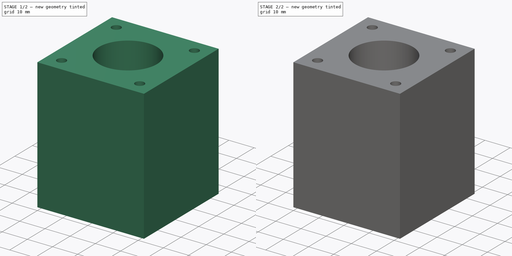
[diagram: build sequence overview — one tinted view per stage of 2, left to right]
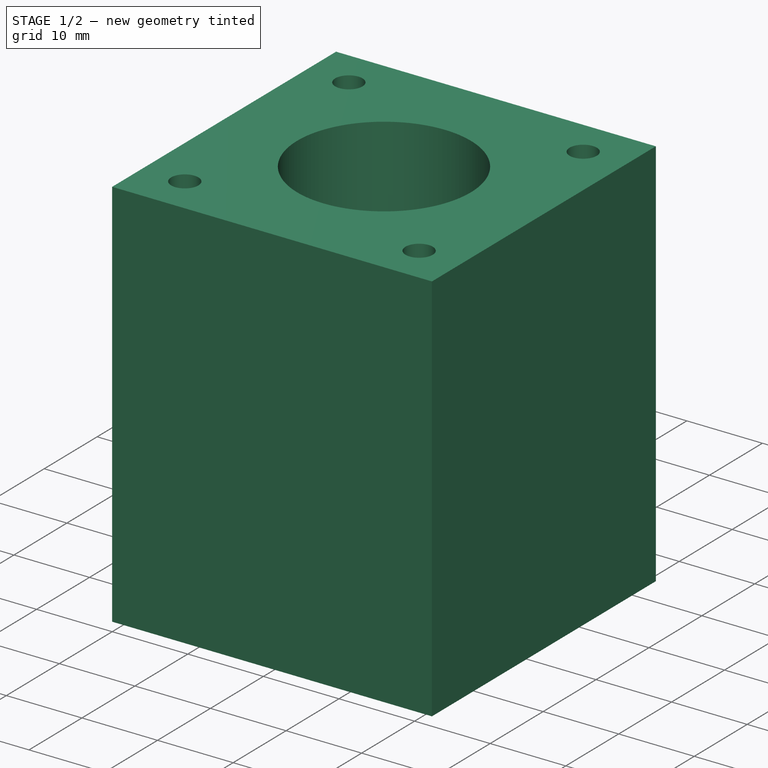
[diagram: stage 1 of 2 — iso view after this stage's code; geometry added in this stage tinted green]
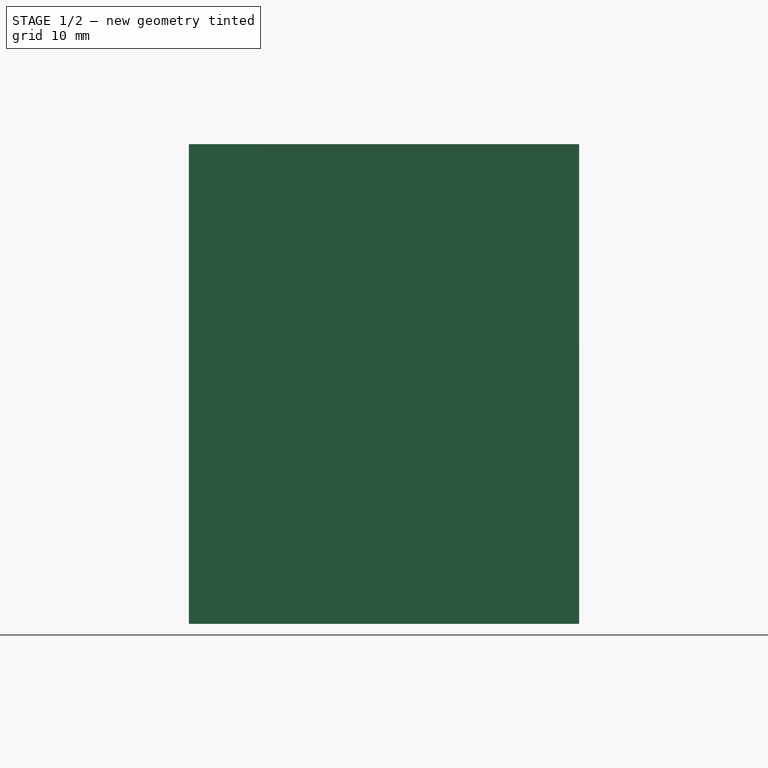
[diagram: stage 1 of 2 — front view after this stage's code; geometry added in this stage tinted green]
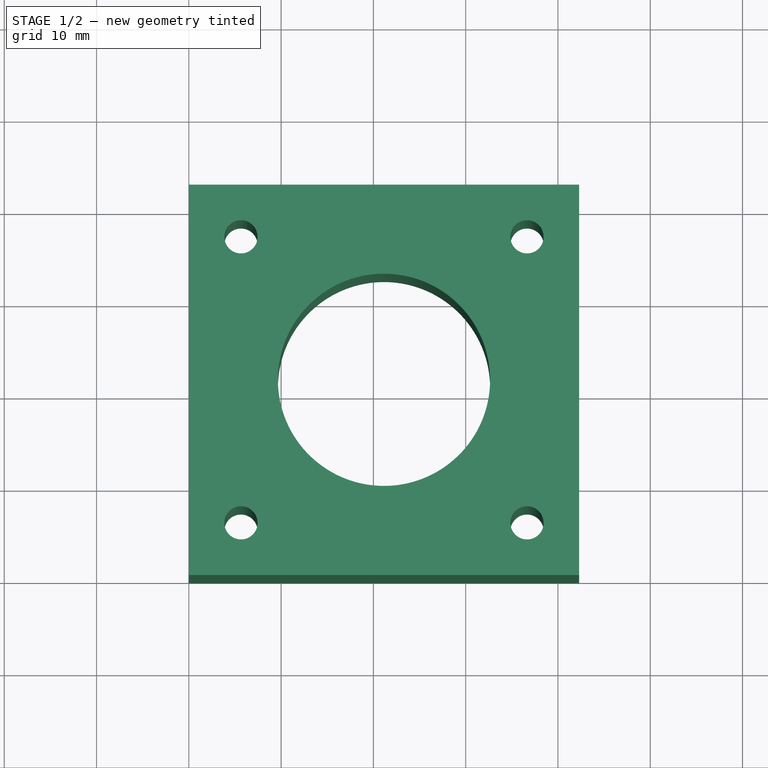
[diagram: stage 1 of 2 — top view after this stage's code; geometry added in this stage tinted green]
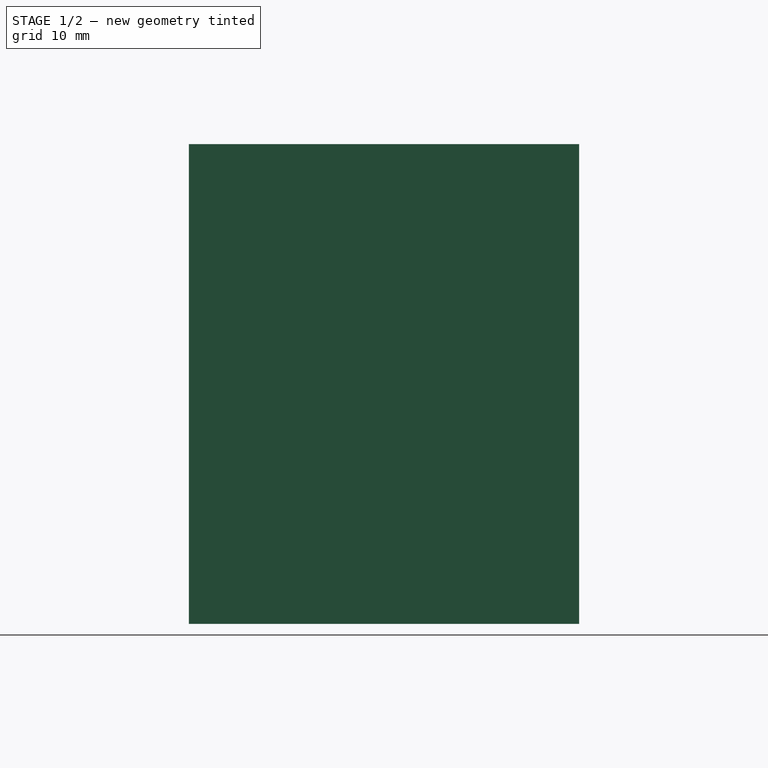
[diagram: stage 1 of 2 — right view after this stage's code; geometry added in this stage tinted green]
FCSTD DOCUMENT  (FreeCAD 0.18R16110 (Git))
Label: cube
License: All rights reserved
LicenseURL: http://en.wikipedia.org/wiki/All_rights_reserved
objects: Sketcher::SketchObject×2, PartDesign::Pad×1, PartDesign::Pocket×1, PartDesign::Body×1
note: 7 computed .brp shape members not serialized (recipe doc carries the construction recipe); baked Part::Feature solids carry a one-line shape summary decoded from their .brp

FEATURE [Sketcher::SketchObject] Sketch
  MapMode = 5
  Support = -> [XY_Plane]
  sketch-geometry (9):
    g0: LineSegment StartX=0 StartY=42.3 StartZ=0 EndX=42.3 EndY=42.3 EndZ=0
    g1: LineSegment StartX=42.3 StartY=42.3 StartZ=0 EndX=42.3 EndY=0 EndZ=0
    g2: LineSegment StartX=42.3 StartY=0 StartZ=0 EndX=0 EndY=0 EndZ=0
    g3: LineSegment StartX=0 StartY=0 StartZ=0 EndX=0 EndY=42.3 EndZ=0
    g4: Circle CenterX=5.65 CenterY=36.65 CenterZ=0 NormalX=0 NormalY=0 NormalZ=1 AngleXU=0 Radius=1.8
    g5: Circle CenterX=36.65 CenterY=36.65 CenterZ=0 NormalX=0 NormalY=0 NormalZ=1 AngleXU=0 Radius=1.8
    g6: Circle CenterX=36.65 CenterY=5.65 CenterZ=0 NormalX=0 NormalY=0 NormalZ=1 AngleXU=0 Radius=1.8
    g7: Circle CenterX=5.65 CenterY=5.65 CenterZ=0 NormalX=0 NormalY=0 NormalZ=1 AngleXU=0 Radius=1.8
    g8: Circle CenterX=21.15 CenterY=21.15 CenterZ=0 NormalX=0 NormalY=0 NormalZ=1 AngleXU=0 Radius=11.5
  constraints (26):
    c: Coincident(g0,g1)
    c: Coincident(g1,g2)
    c: Coincident(g2,g3)
    c: Coincident(g3,g0)
    c: Horizontal(g0)
    c: Horizontal(g2)
    c: Vertical(g1)
    c: Vertical(g3)
    c: DistanceY(g3,g3) = 42.3
    c: DistanceX(g0,g0) = 42.3
    c: Coincident(g2,g-1)
    c: DistanceX(g2,g7) = 5.65
    c: DistanceY(g2,g7) = 5.65
    c: Radius(g7) = 1.8
    c: DistanceY(g7,g4) = 31
    c: DistanceX(g4,g7) = 0
    c: DistanceY(g5,g4) = 0
    c: DistanceX(g4,g5) = 31
    c: DistanceX(g6,g5) = 0
    c: DistanceY(g6,g5) = 31
    c: Radius(g4) = 1.8
    c: Radius(g5) = 1.8
    c: Radius(g6) = 1.8
    c: DistanceX(g2,g8) = 21.15
    c: DistanceY(g2,g8) = 21.15
    c: Radius(g8) = 11.5
FEATURE [PartDesign::Pad] Pad
  Length = 52
  Length2 = 100
  Profile = -> Sketch
  Type = 0
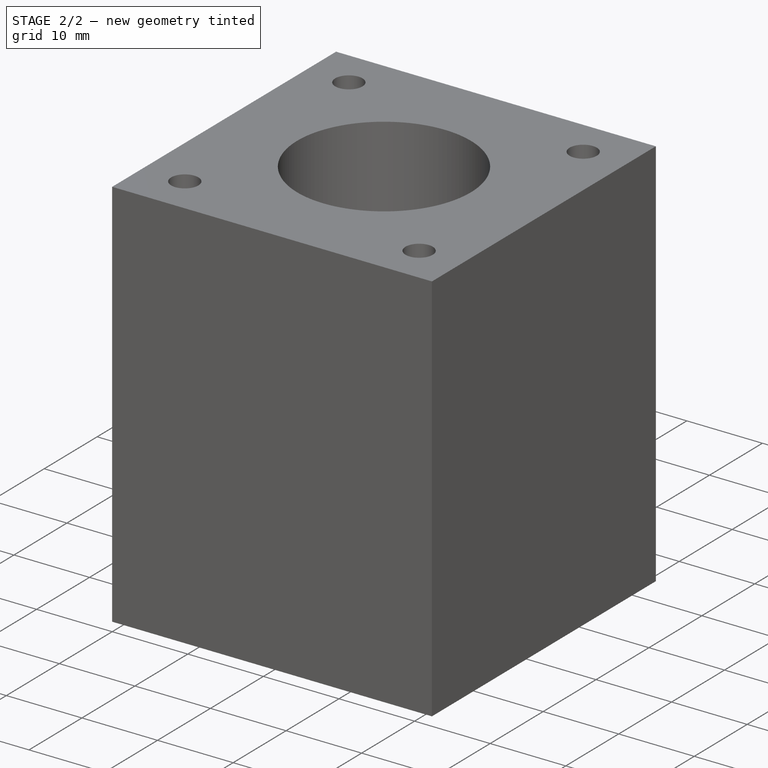
[diagram: stage 2 of 2 — iso view after this stage's code; geometry added in this stage tinted green]
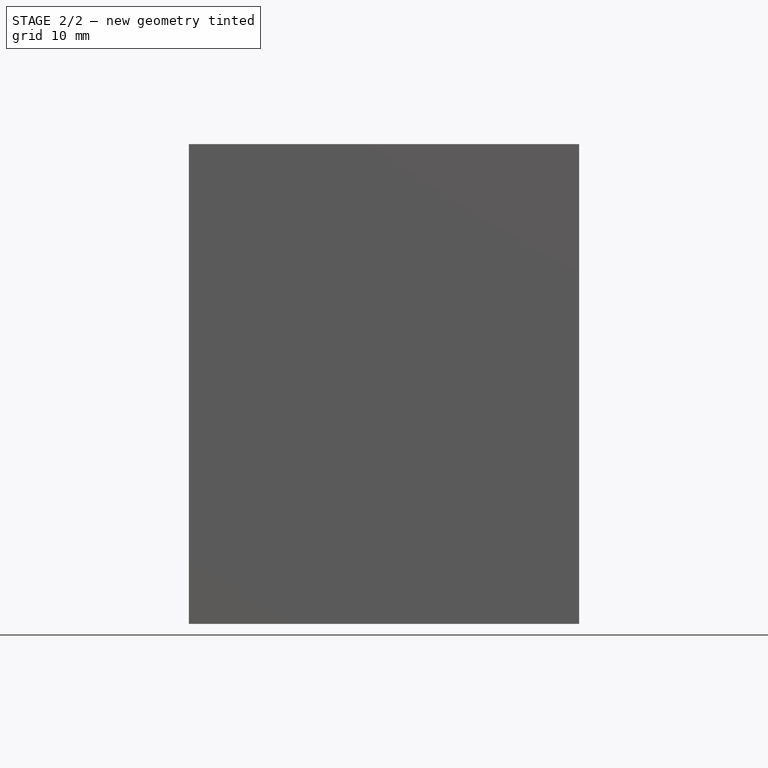
[diagram: stage 2 of 2 — front view after this stage's code; geometry added in this stage tinted green]
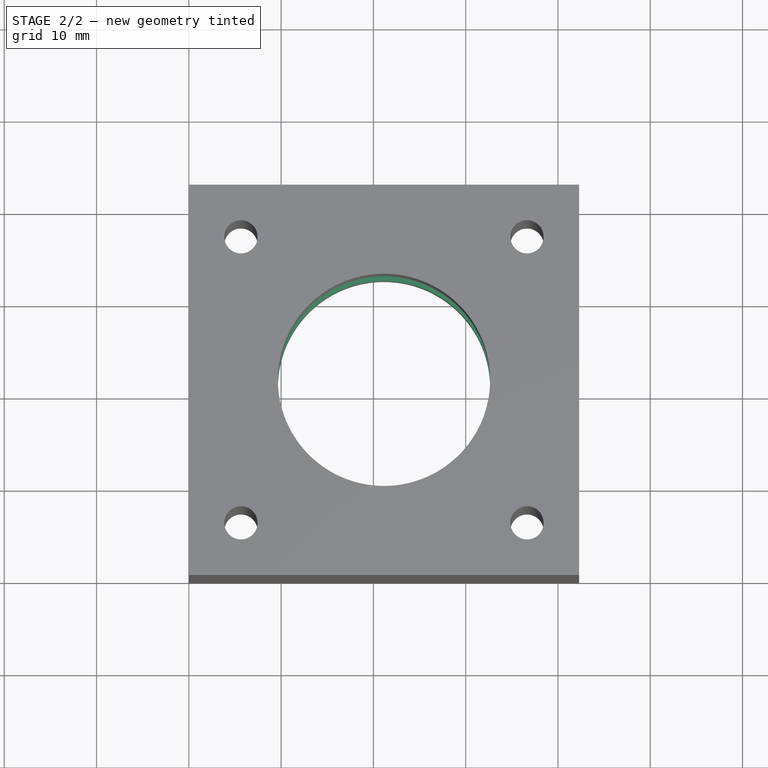
[diagram: stage 2 of 2 — top view after this stage's code; geometry added in this stage tinted green]
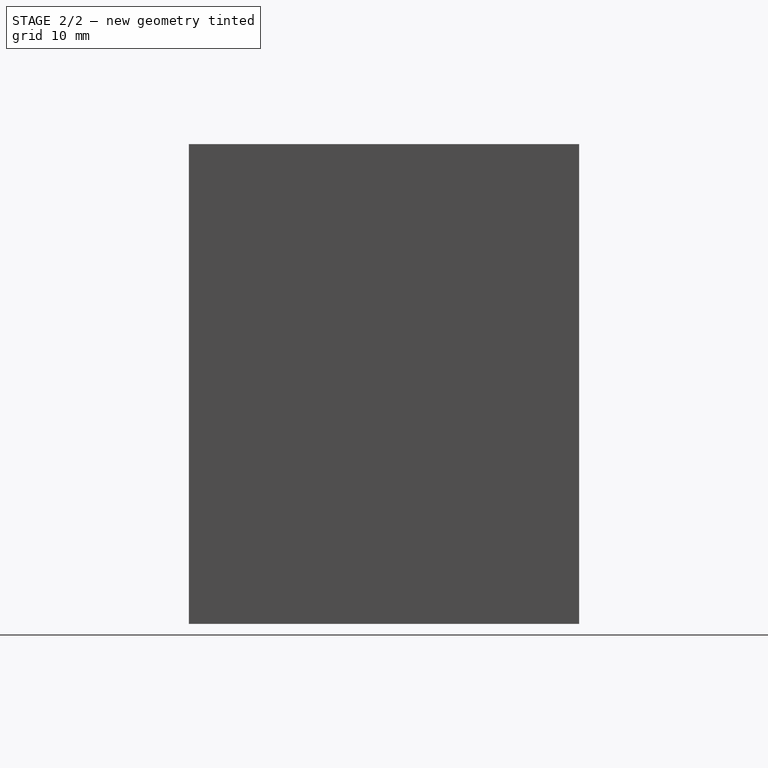
[diagram: stage 2 of 2 — right view after this stage's code; geometry added in this stage tinted green]
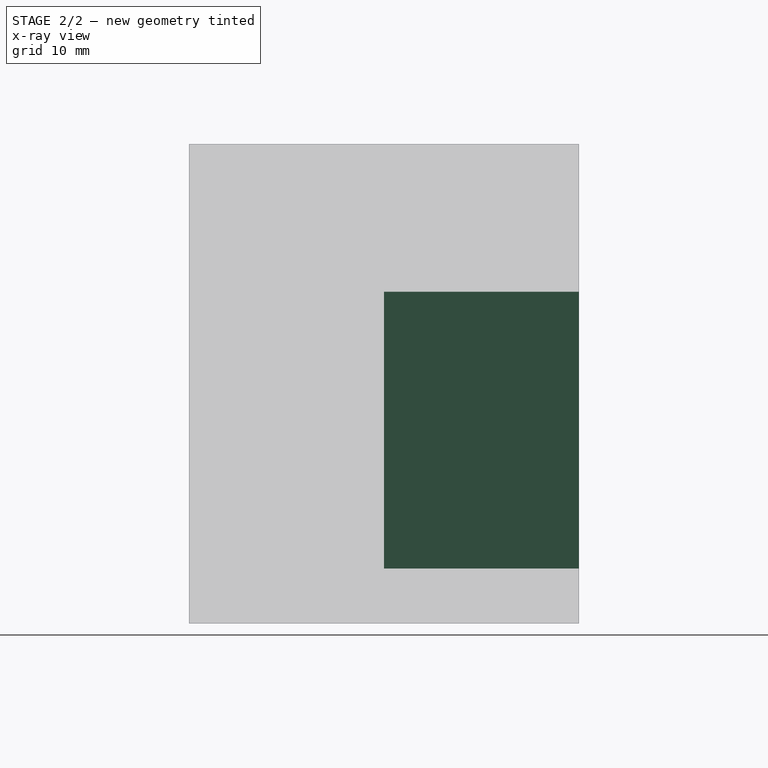
[diagram: stage 2 of 2 — x-ray composite at the right view; earlier geometry ghosted, this stage's added geometry solid]
FEATURE [Sketcher::SketchObject] Sketch001
  MapMode = 5
  Placement = pos=(0,42.3,0) rot=(0,0.707107,0.707107;3.14159rad)
  Support = -> [Pad]
  sketch-geometry (4):
    g0: LineSegment StartX=-32.65 StartY=36 StartZ=0 EndX=-9.65 EndY=36 EndZ=0
    g1: LineSegment StartX=-9.65 StartY=36 StartZ=0 EndX=-9.65 EndY=6 EndZ=0
    g2: LineSegment StartX=-9.65 StartY=6 StartZ=0 EndX=-32.65 EndY=6 EndZ=0
    g3: LineSegment StartX=-32.65 StartY=6 StartZ=0 EndX=-32.65 EndY=36 EndZ=0
  constraints (12):
    c: Coincident(g0,g1)
    c: Coincident(g1,g2)
    c: Coincident(g2,g3)
    c: Coincident(g3,g0)
    c: Horizontal(g0)
    c: Horizontal(g2)
    c: Vertical(g1)
    c: Vertical(g3)
    c: DistanceY(g-1,g1) = 6
    c: DistanceY(g3,g3) = 30
    c: DistanceX(g0,g0) = 23
    c: DistanceX(g1,g-1) = 9.65
FEATURE [PartDesign::Pocket] Pocket
  BaseFeature = -> Pad
  Length = 21.15
  Length2 = 100
  Profile = -> Sketch001
  Type = 0
FEATURE [PartDesign::Body] Body
  Group = -> [Sketch,Pad,Sketch001,Pocket]
  Origin = -> Origin
  Tip = -> Pocket
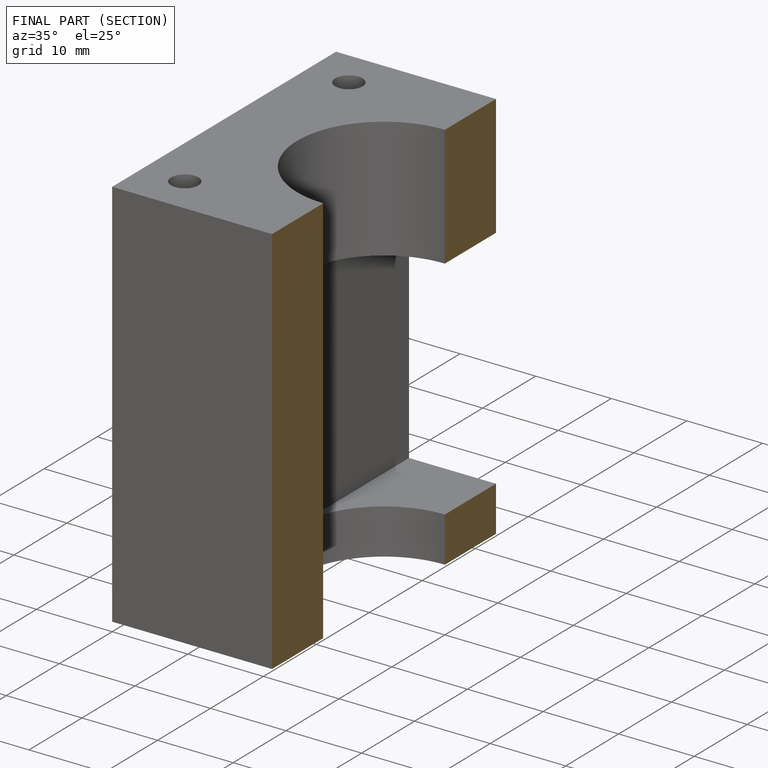
[diagram: finished part — half-section view (interior)]
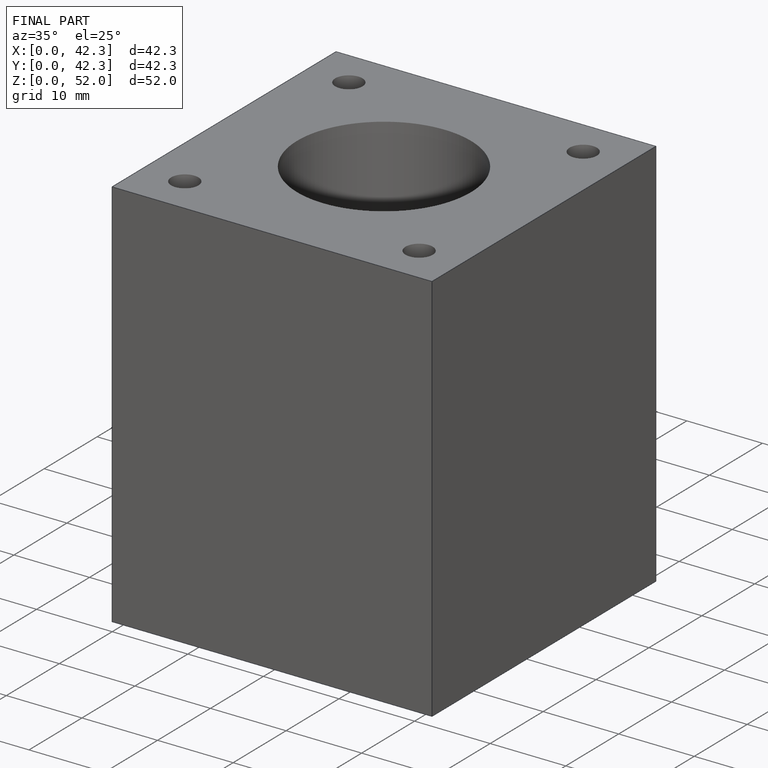
[diagram: finished part — iso view with bounding-box wireframe]
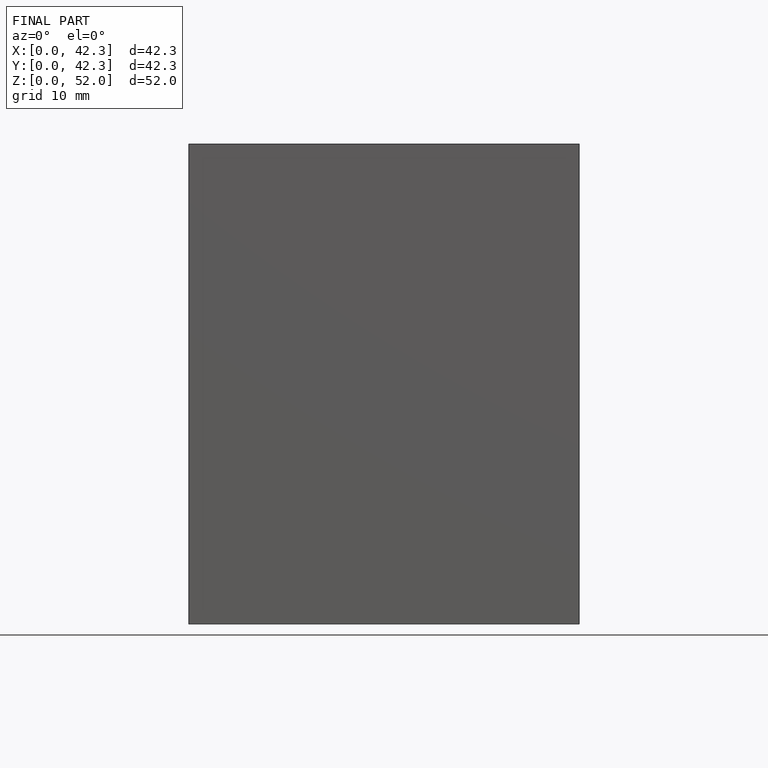
[diagram: finished part — front view with bounding-box wireframe]
